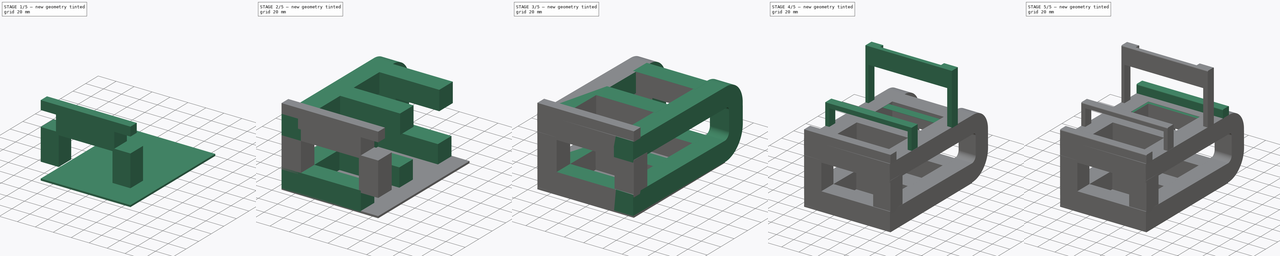
[diagram: build sequence overview — one tinted view per stage of 5, left to right]
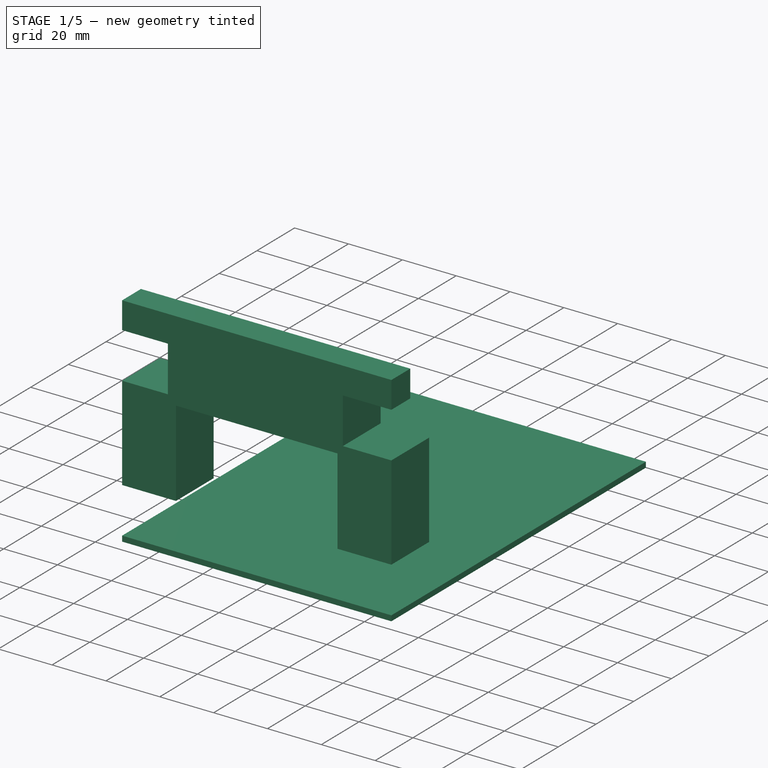
[diagram: stage 1 of 5 — iso view after this stage's code; geometry added in this stage tinted green]
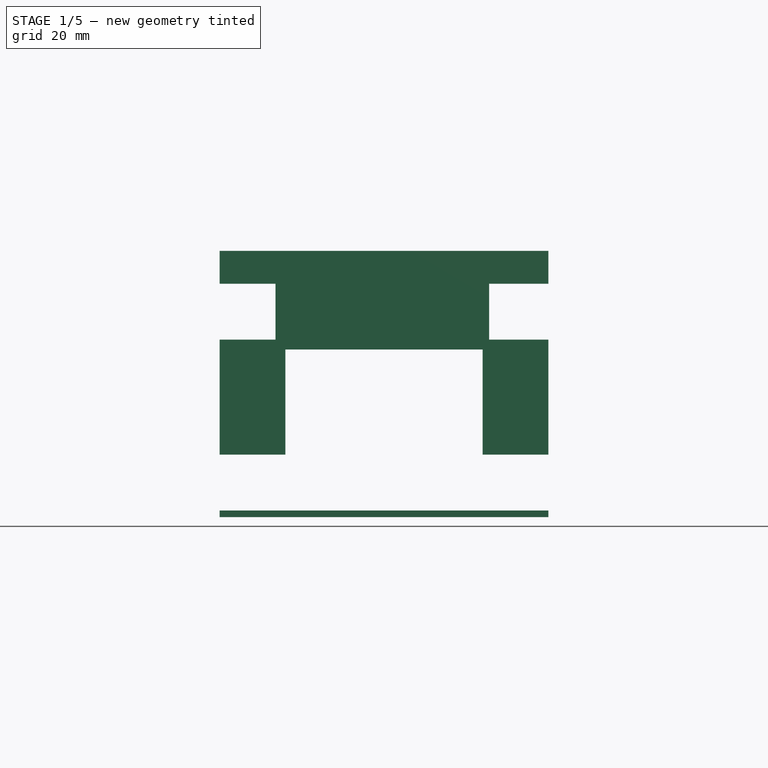
[diagram: stage 1 of 5 — front view after this stage's code; geometry added in this stage tinted green]
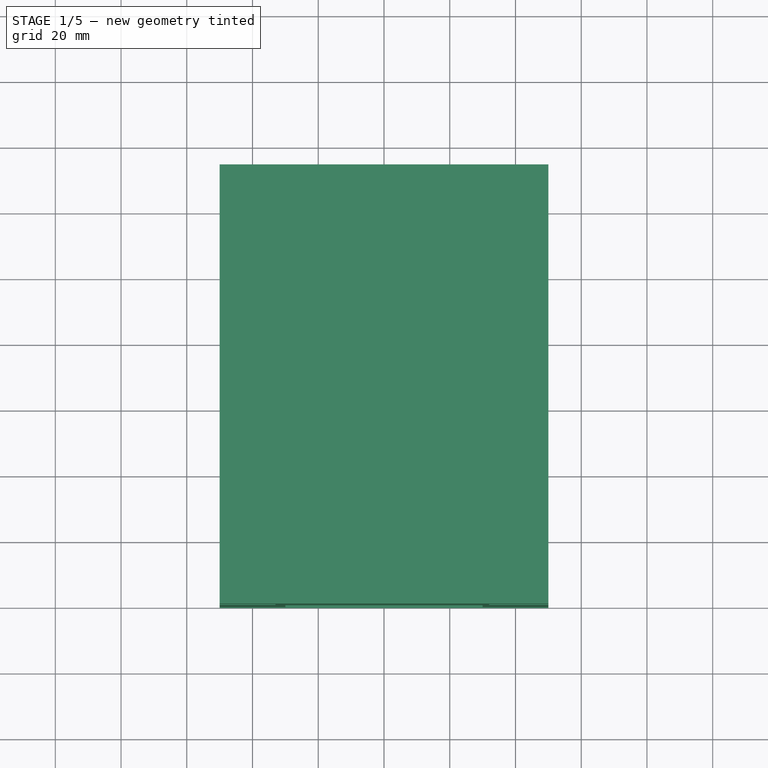
[diagram: stage 1 of 5 — top view after this stage's code; geometry added in this stage tinted green]
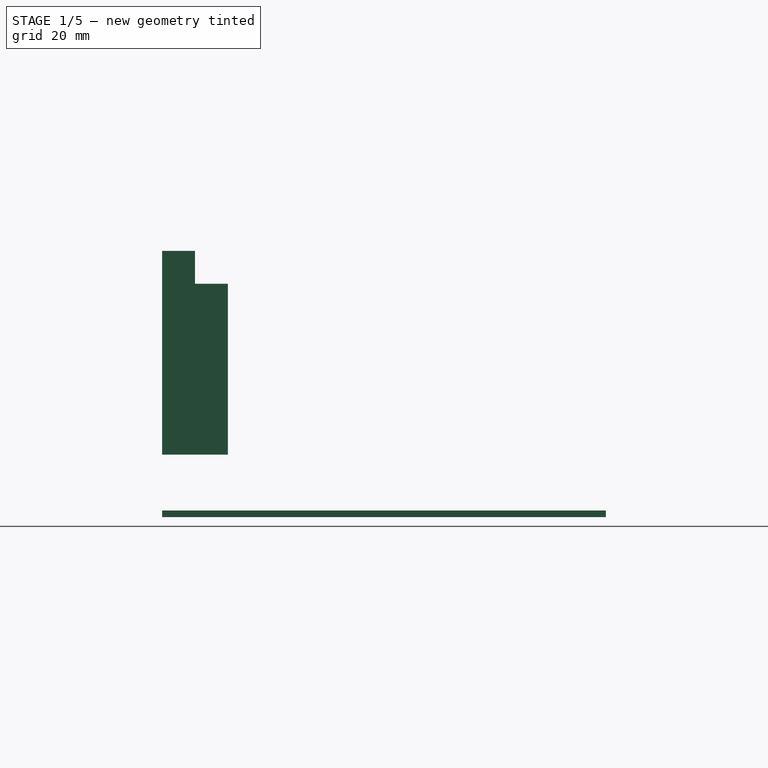
[diagram: stage 1 of 5 — right view after this stage's code; geometry added in this stage tinted green]
FCSTD DOCUMENT  (FreeCAD 0.16R6704 (Git))
Label: OBD 1. proiektua (MObila eusteko)
License: All rights reserved
LicenseURL: http://en.wikipedia.org/wiki/All_rights_reserved
objects: Sketcher::SketchObject×8, Part::Box×8, Part::MultiFuse×4, PartDesign::Pocket×4, Part::FeaturePython×3, Part::Fuse×3, Part::Fillet×2, Part::Sweep×1, Part::Mirroring×1
note: 38 computed .brp shape members not serialized (recipe doc carries the construction recipe); baked Part::Feature solids carry a one-line shape summary decoded from their .brp

FEATURE [Part::Box] Box001  label="Goiko 1. lotura"
  Height = 20
  Length = 65
  Placement = pos=(7,0,40) rot=(0,0,1;0rad)
  Width = 20
FEATURE [Part::Box] Box002  label="Mobila eusteko oin txikia"
  Height = 10
  Length = 100
  Placement = pos=(-10,0,60) rot=(0,0,1;0rad)
  Width = 10
FEATURE [Part::Box] Box006  label="Zutoina"
  Height = 35
  Length = 20
  Placement = pos=(-10,0,8) rot=(0,0,1;0rad)
  Width = 20
FEATURE [Part::FeaturePython] Array002  label="Bigarren zutoina"  # Draft array (typed FeaturePython)
  Angle = 360
  ArrayType = 0
  Axis = (0,0,1)
  Base = -> Box006
  Center = (0,0,0)
  Fuse = false
  IntervalAxis = (0,0,0)
  IntervalX = (80,0,0)
  IntervalY = (0,1,0)
  IntervalZ = (0,0,0)
  NumberPolar = 1
  NumberX = 2
  NumberY = 1
  NumberZ = 1
FEATURE [Part::Box] Box007  label="Oinarria"
  Height = 2
  Length = 100
  Placement = pos=(-10,0,-11) rot=(0,0,1;0rad)
  Width = 135
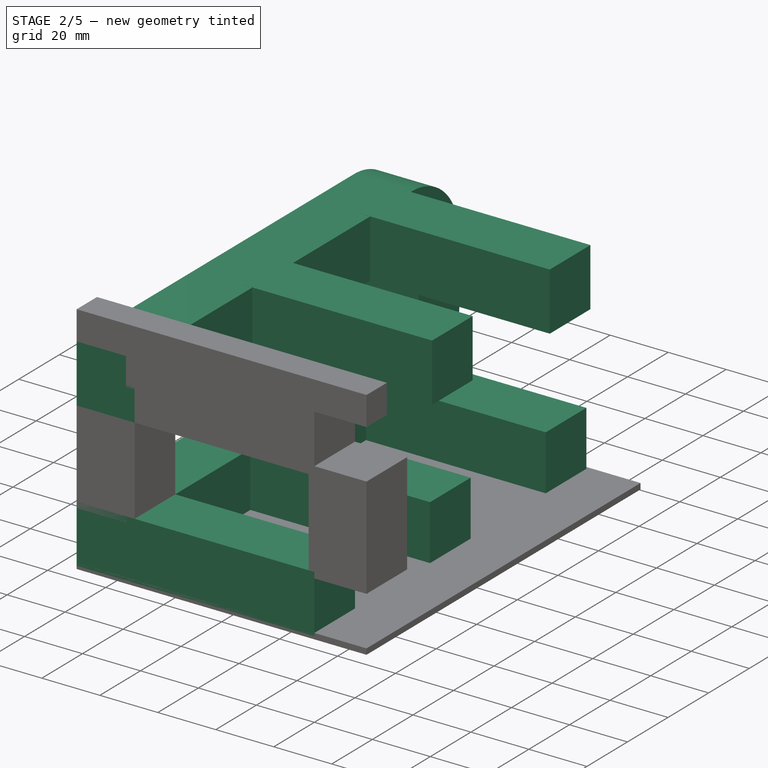
[diagram: stage 2 of 5 — iso view after this stage's code; geometry added in this stage tinted green]
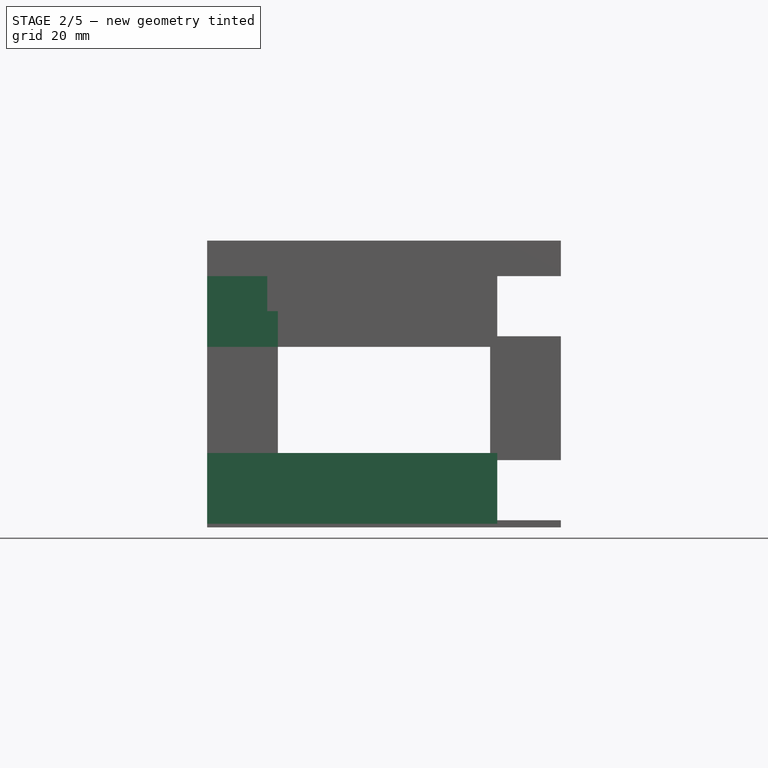
[diagram: stage 2 of 5 — front view after this stage's code; geometry added in this stage tinted green]
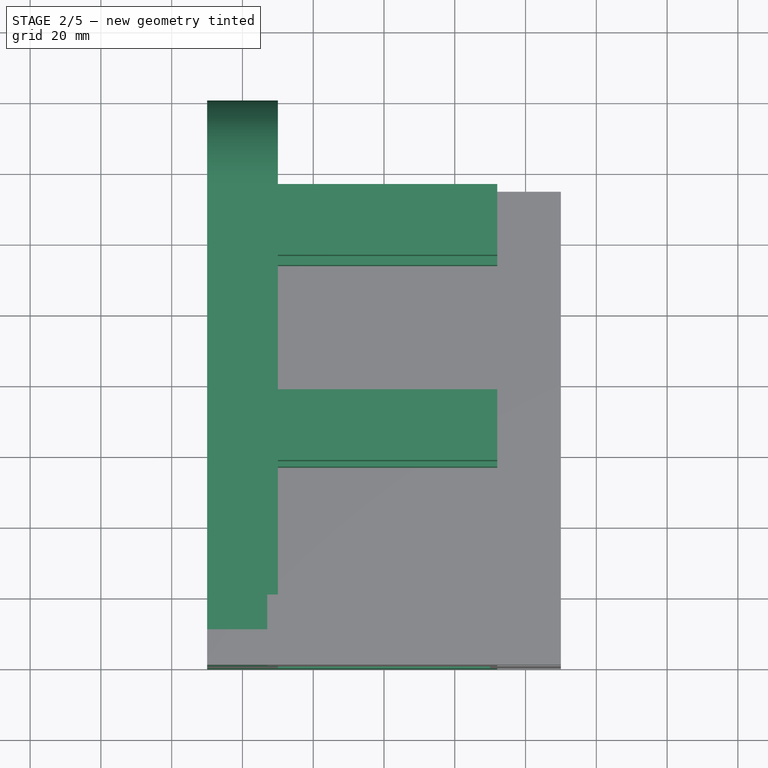
[diagram: stage 2 of 5 — top view after this stage's code; geometry added in this stage tinted green]
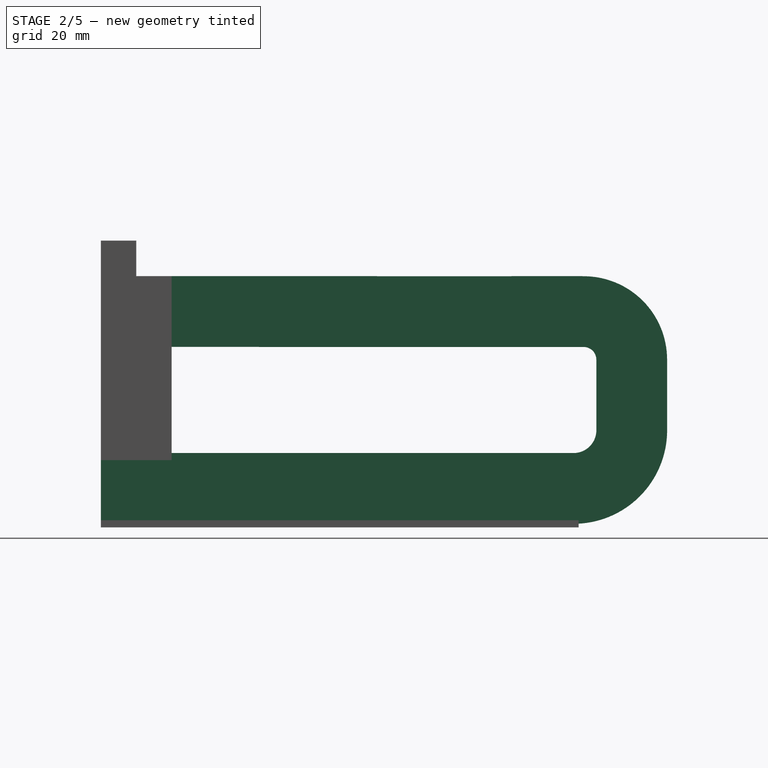
[diagram: stage 2 of 5 — right view after this stage's code; geometry added in this stage tinted green]
FEATURE [Sketcher::SketchObject] Sketch
  Placement = pos=(0,0,0) rot=(1,0,0;1.5708rad)
  sketch-geometry (4):
    g0: LineSegment StartX=-9.99956 StartY=-10.0007 StartZ=0 EndX=10.0001 EndY=-10.0007 EndZ=0
    g1: LineSegment StartX=10.0001 StartY=-10.0007 StartZ=0 EndX=10.0001 EndY=9.9998 EndZ=0
    g2: LineSegment StartX=10.0001 StartY=9.9998 StartZ=0 EndX=-9.99956 EndY=9.9998 EndZ=0
    g3: LineSegment StartX=-9.99956 StartY=9.9998 StartZ=0 EndX=-9.99956 EndY=-10.0007 EndZ=0
  constraints (8):
    c: Coincident(g0,g1)
    c: Coincident(g1,g2)
    c: Coincident(g2,g3)
    c: Coincident(g3,g0)
    c: Horizontal(g0)
    c: Horizontal(g2)
    c: Vertical(g1)
    c: Vertical(g3)
FEATURE [Sketcher::SketchObject] Sketch001
  Placement = pos=(0,0,0) rot=(0.57735,0.57735,0.57735;2.0944rad)
  sketch-geometry (5):
    g0: LineSegment StartX=0 StartY=0 StartZ=0 EndX=133.575 EndY=-0.0115726 EndZ=0
    g1: LineSegment StartX=150.018 StartY=16.4399 StartZ=0 EndX=150.006 EndY=36.4081 EndZ=0
    g2: ArcOfCircle CenterX=133.577 CenterY=16.4298 CenterZ=0 NormalX=0 NormalY=0 NormalZ=1 Radius=16.4413 StartAngle=4.7123 EndAngle=6.2838
    g3: LineSegment StartX=136.456 StartY=49.9529 StartZ=0 EndX=0 EndY=49.9834 EndZ=0
    g4: ArcOfCircle CenterX=136.453 CenterY=36.3998 CenterZ=0 NormalX=0 NormalY=0 NormalZ=1 Radius=13.5531 StartAngle=0.000615353 EndAngle=1.57057
  constraints (5):
    c: Tangent(g1,g2) = -1.5708
    c: Tangent(g0,g2) = -1.5708
    c: PointOnObject(g3,g-2)
    c: Tangent(g1,g4) = -1.5708
    c: Tangent(g3,g4) = -1.5708
FEATURE [Part::Sweep] Sweep  label="Oinarrizko estruktura"
  Frenet = false
  Sections = -> [Sketch]
  Solid = true
  Spine = -> Sketch001 [Edge1,Edge2,Edge3,Edge4,Edge5]
  Transition = 1
FEATURE [Part::Box] Box  label="1, Lotura"
  Height = 20
  Length = 65
  Placement = pos=(7,0,-10) rot=(0,0,1;0rad)
  Width = 20
FEATURE [Part::FeaturePython] Array  label="Beherako loturak"  # Draft array (typed FeaturePython)
  Angle = 360
  ArrayType = 0
  Axis = (0,0,1)
  Base = -> Box
  Center = (0,0,0)
  Fuse = false
  IntervalAxis = (0,0,0)
  IntervalX = (1,0,0)
  IntervalY = (0,57,0)
  IntervalZ = (0,0,0)
  NumberPolar = 1
  NumberX = 1
  NumberY = 3
  NumberZ = 1
FEATURE [Part::Fuse] Fusion  label="Estruktura + loturak"
  Base = -> Sweep
  Tool = -> Array
FEATURE [Part::FeaturePython] Array001  label="Goiko oloturak"  # Draft array (typed FeaturePython)
  Angle = 360
  ArrayType = 0
  Axis = (0,0,1)
  Base = -> Box001
  Center = (0,0,0)
  Fuse = false
  IntervalAxis = (0,0,0)
  IntervalX = (1,0,0)
  IntervalY = (0,58,0)
  IntervalZ = (0,0,0)
  NumberPolar = 1
  NumberX = 1
  NumberY = 3
  NumberZ = 1
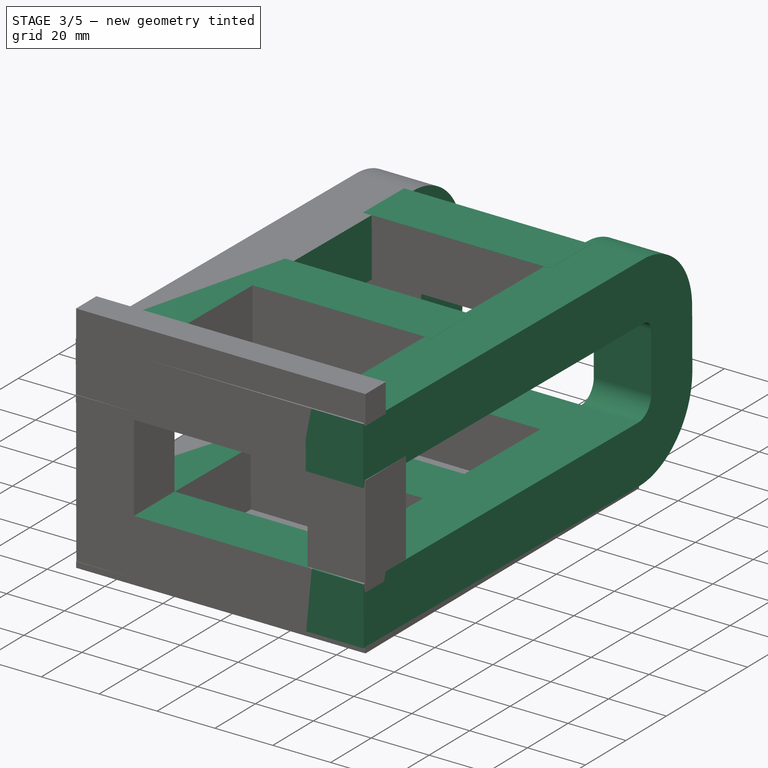
[diagram: stage 3 of 5 — iso view after this stage's code; geometry added in this stage tinted green]
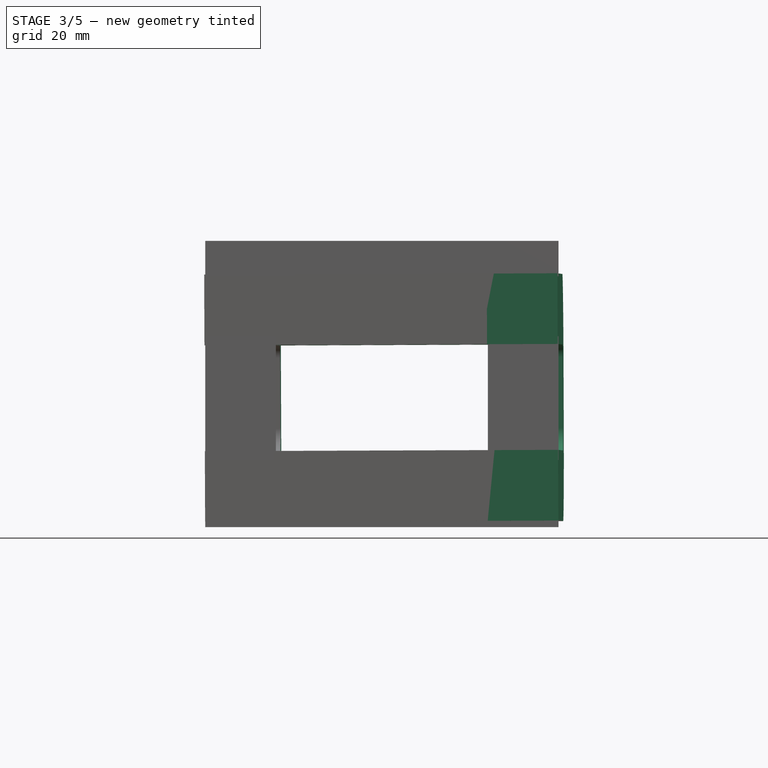
[diagram: stage 3 of 5 — front view after this stage's code; geometry added in this stage tinted green]
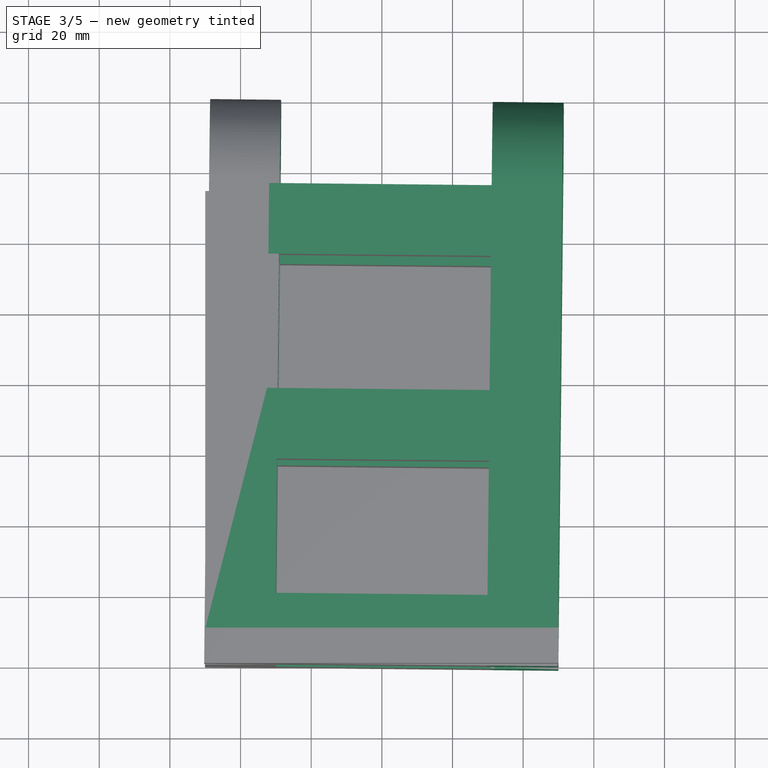
[diagram: stage 3 of 5 — top view after this stage's code; geometry added in this stage tinted green]
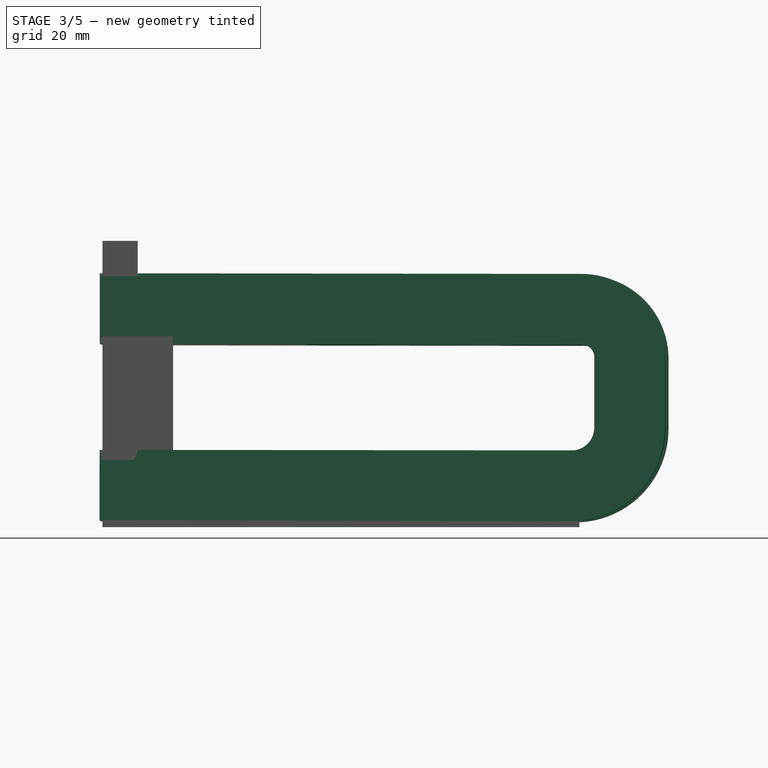
[diagram: stage 3 of 5 — right view after this stage's code; geometry added in this stage tinted green]
FEATURE [Part::Mirroring] Part__Mirroring  label="Oinarrizko estruktura, beste aldea"
  Base = (0,0,0)
  Normal = (1,0,0)
  Placement = pos=(80,0,0) rot=(0,0,1;0rad)
  Source = -> Sweep
FEATURE [Part::Fuse] Fusion001  label="oinarrizko estrukturen lotura"
  Base = -> Part__Mirroring
  Tool = -> Fusion
FEATURE [Part::Fuse] Fusion002  label="Estruktura"
  Base = -> Fusion001
  Placement = pos=(-0.0674155,0.0881086,0.519024) rot=(-0.107493,-0.347421,-0.931528;0.010904rad)
  Tool = -> Array001
FEATURE [Part::MultiFuse] Fusion003  label="Estruktura oin txikiarekin"
  Shapes = -> [Box002,Fusion002]
FEATURE [Part::MultiFuse] Fusion004
  Shapes = -> [Array002,Fusion003]
FEATURE [Part::MultiFuse] Fusion005
  Shapes = -> [Box007,Fusion004]
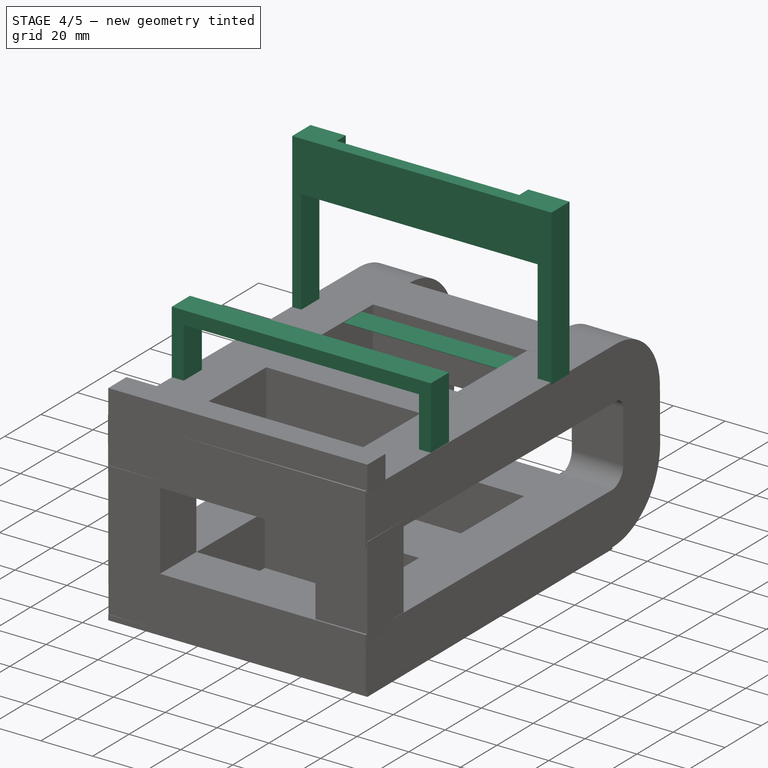
[diagram: stage 4 of 5 — iso view after this stage's code; geometry added in this stage tinted green]
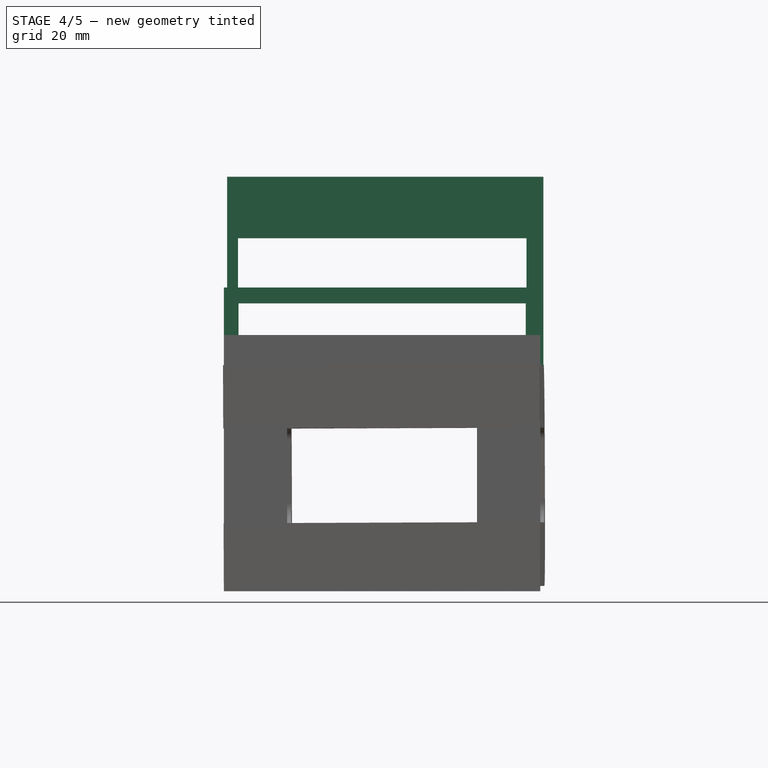
[diagram: stage 4 of 5 — front view after this stage's code; geometry added in this stage tinted green]
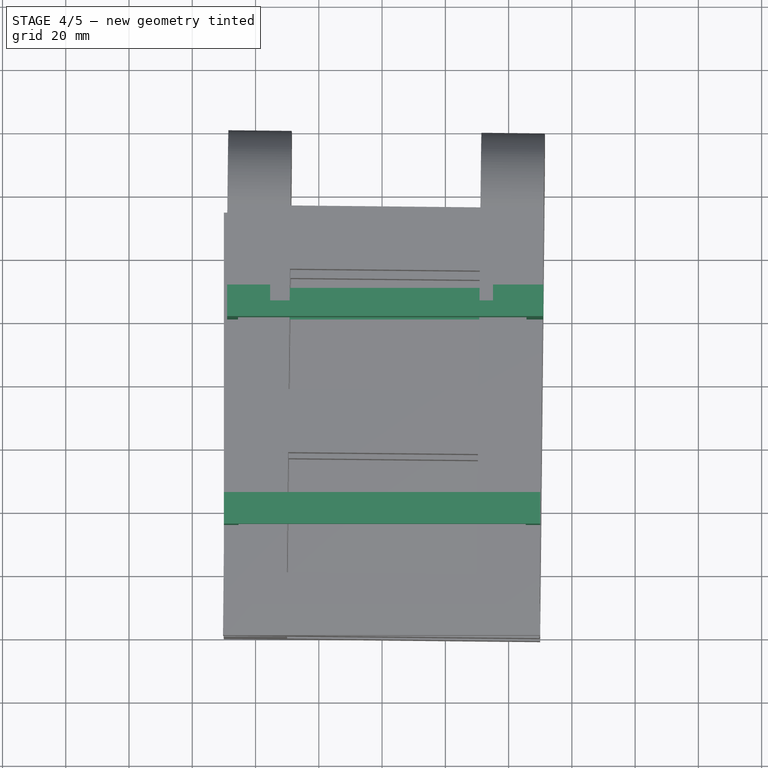
[diagram: stage 4 of 5 — top view after this stage's code; geometry added in this stage tinted green]
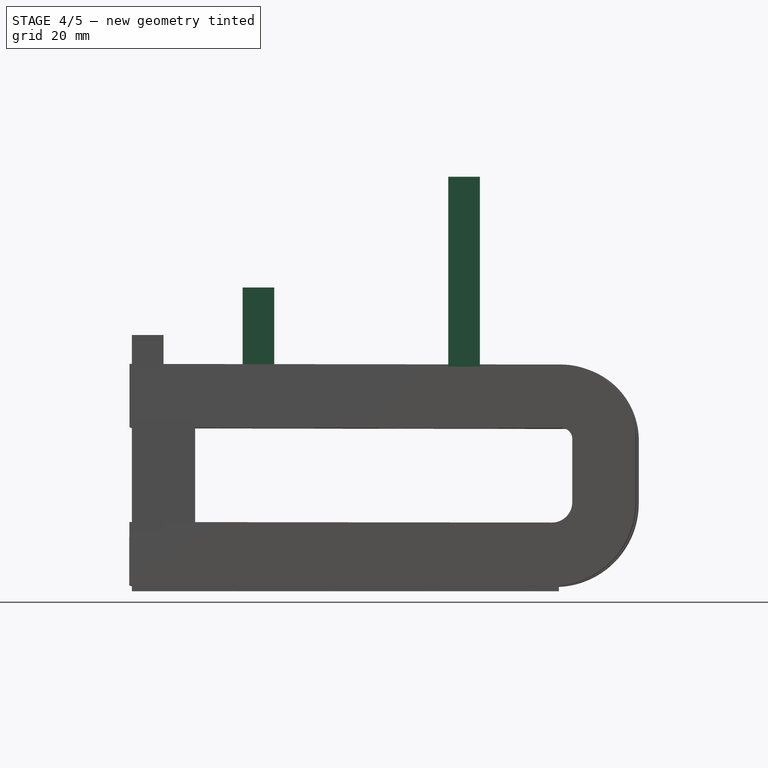
[diagram: stage 4 of 5 — right view after this stage's code; geometry added in this stage tinted green]
FEATURE [Part::Box] Box003  label="Horizontalki eusteko oin handia"
  Height = 25
  Length = 100
  Placement = pos=(-10,35,60) rot=(0,0,1;0rad)
  Width = 10
FEATURE [Part::Box] Box005  label="Bertikalki eusteko oin handia"
  Height = 60
  Length = 100
  Placement = pos=(-9,100,60) rot=(0,0,1;0rad)
  Width = 10
FEATURE [Sketcher::SketchObject] Sketch002
  Placement = pos=(-10,35,60) rot=(1,0,0;1.5708rad)
  Support = -> Box003 [Face3]
FEATURE [Sketcher::SketchObject] Sketch003
  Placement = pos=(-10,35,60) rot=(1,0,0;1.5708rad)
  Support = -> Box003 [Face3]
  sketch-geometry (4):
    g0: LineSegment StartX=4.59968 StartY=-0.198788 StartZ=0 EndX=95.406 EndY=-0.198788 EndZ=0
    g1: LineSegment StartX=95.406 StartY=-0.198788 StartZ=0 EndX=95.406 EndY=19.9706 EndZ=0
    g2: LineSegment StartX=95.406 StartY=19.9706 StartZ=0 EndX=4.59968 EndY=19.9706 EndZ=0
    g3: LineSegment StartX=4.59968 StartY=19.9706 StartZ=0 EndX=4.59968 EndY=-0.198788 EndZ=0
  constraints (8):
    c: Coincident(g0,g1)
    c: Coincident(g1,g2)
    c: Coincident(g2,g3)
    c: Coincident(g3,g0)
    c: Horizontal(g0)
    c: Horizontal(g2)
    c: Vertical(g1)
    c: Vertical(g3)
FEATURE [PartDesign::Pocket] Pocket
  Length = 105
  Placement = pos=(-10,35,60) rot=(0,0,1;0rad)
  Sketch = -> Sketch003
  Type = 1
FEATURE [Sketcher::SketchObject] Sketch004
  Placement = pos=(-9,100,60) rot=(1,0,0;1.5708rad)
  Support = -> Box005 [Face3]
  sketch-geometry (4):
    g0: LineSegment StartX=3.45614 StartY=0.196758 StartZ=0 EndX=94.6742 EndY=0.196758 EndZ=0
    g1: LineSegment StartX=94.6742 StartY=0.196758 StartZ=0 EndX=94.6742 EndY=40.5584 EndZ=0
    g2: LineSegment StartX=94.6742 StartY=40.5584 StartZ=0 EndX=3.45614 EndY=40.5584 EndZ=0
    g3: LineSegment StartX=3.45614 StartY=40.5584 StartZ=0 EndX=3.45614 EndY=0.196758 EndZ=0
  constraints (8):
    c: Coincident(g0,g1)
    c: Coincident(g1,g2)
    c: Coincident(g2,g3)
    c: Coincident(g3,g0)
    c: Horizontal(g0)
    c: Horizontal(g2)
    c: Vertical(g1)
    c: Vertical(g3)
FEATURE [PartDesign::Pocket] Pocket001
  Length = 5
  Placement = pos=(-9,100,60) rot=(0,0,1;0rad)
  Sketch = -> Sketch004
  Type = 1
FEATURE [Sketcher::SketchObject] Sketch005
  Placement = pos=(-9,110,60) rot=(0,0.707107,0.707107;3.14159rad)
  Support = -> Pocket001 [Face4]
  sketch-geometry (4):
    g0: LineSegment StartX=-84.069 StartY=38.3452 StartZ=0 EndX=-13.6133 EndY=38.3452 EndZ=0
    g1: LineSegment StartX=-13.6133 StartY=38.3452 StartZ=0 EndX=-13.6133 EndY=61.0136 EndZ=0
    g2: LineSegment StartX=-13.6133 StartY=61.0136 StartZ=0 EndX=-84.069 EndY=61.0136 EndZ=0
    g3: LineSegment StartX=-84.069 StartY=61.0136 StartZ=0 EndX=-84.069 EndY=38.3452 EndZ=0
  constraints (8):
    c: Coincident(g0,g1)
    c: Coincident(g1,g2)
    c: Coincident(g2,g3)
    c: Coincident(g3,g0)
    c: Horizontal(g0)
    c: Horizontal(g2)
    c: Vertical(g1)
    c: Vertical(g3)
FEATURE [PartDesign::Pocket] Pocket002
  Length = 5
  Placement = pos=(-9,100,60) rot=(0,0,1;0rad)
  Sketch = -> Sketch005
  Type = 0
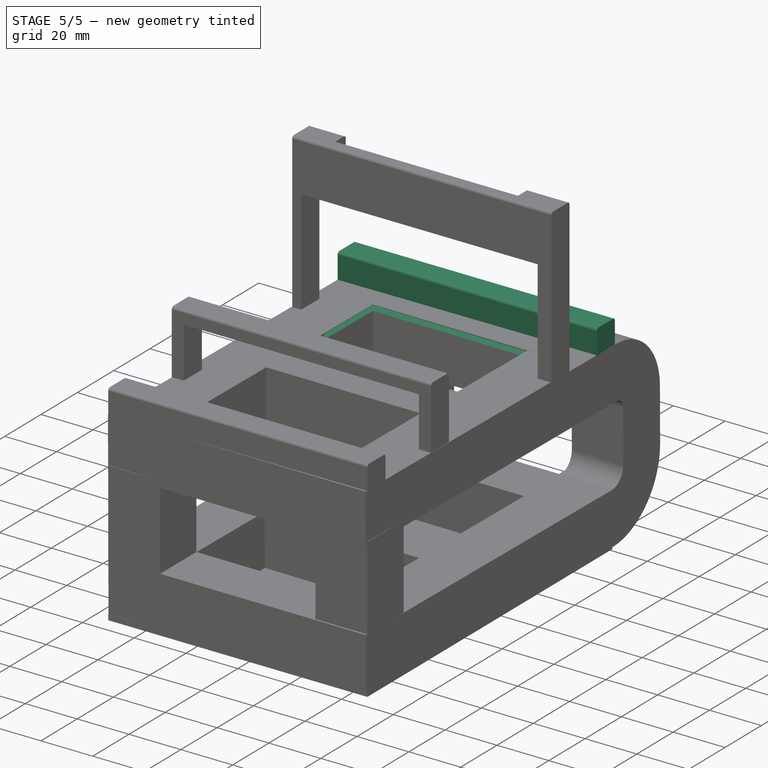
[diagram: stage 5 of 5 — iso view after this stage's code; geometry added in this stage tinted green]
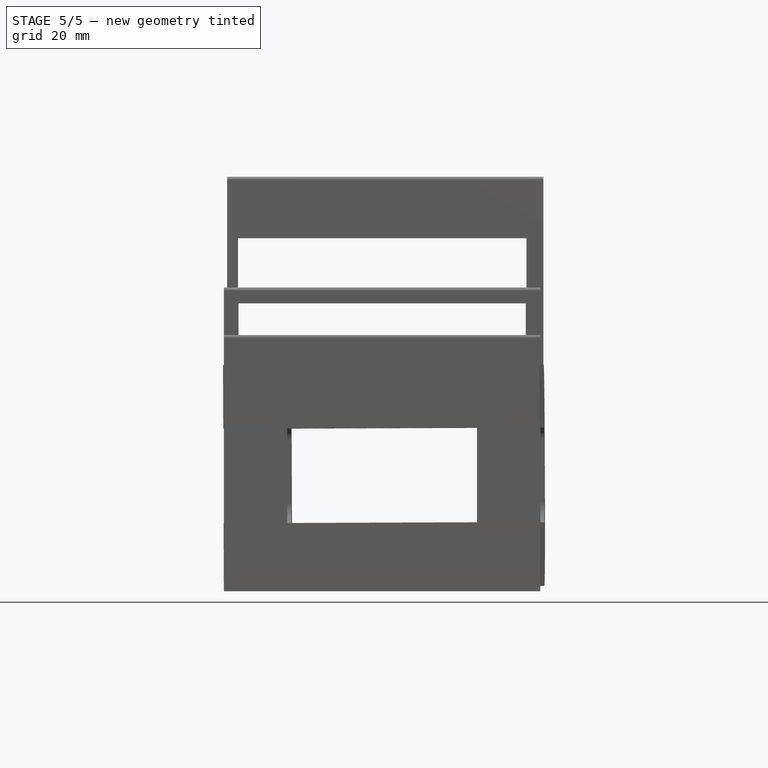
[diagram: stage 5 of 5 — front view after this stage's code; geometry added in this stage tinted green]
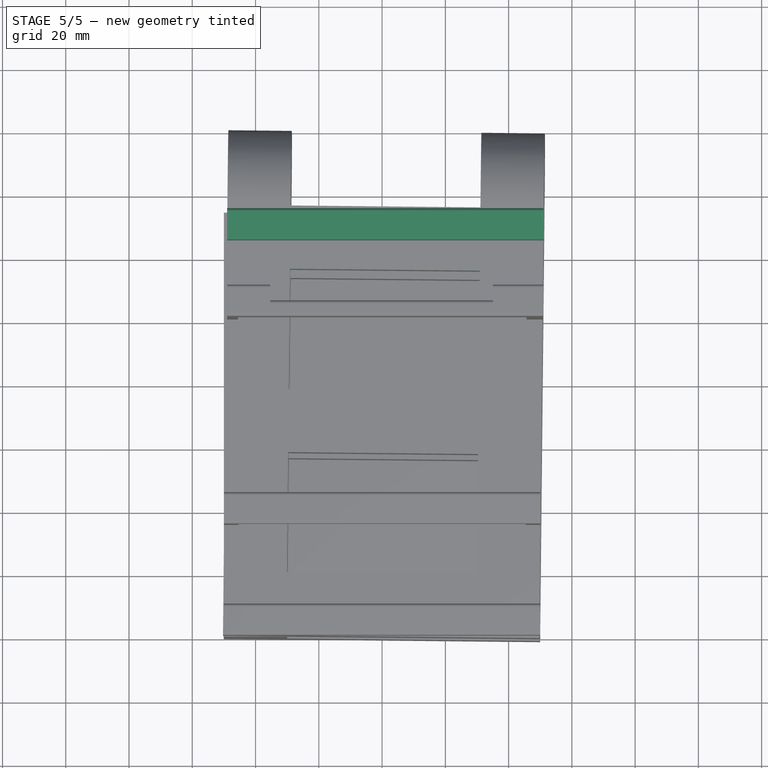
[diagram: stage 5 of 5 — top view after this stage's code; geometry added in this stage tinted green]
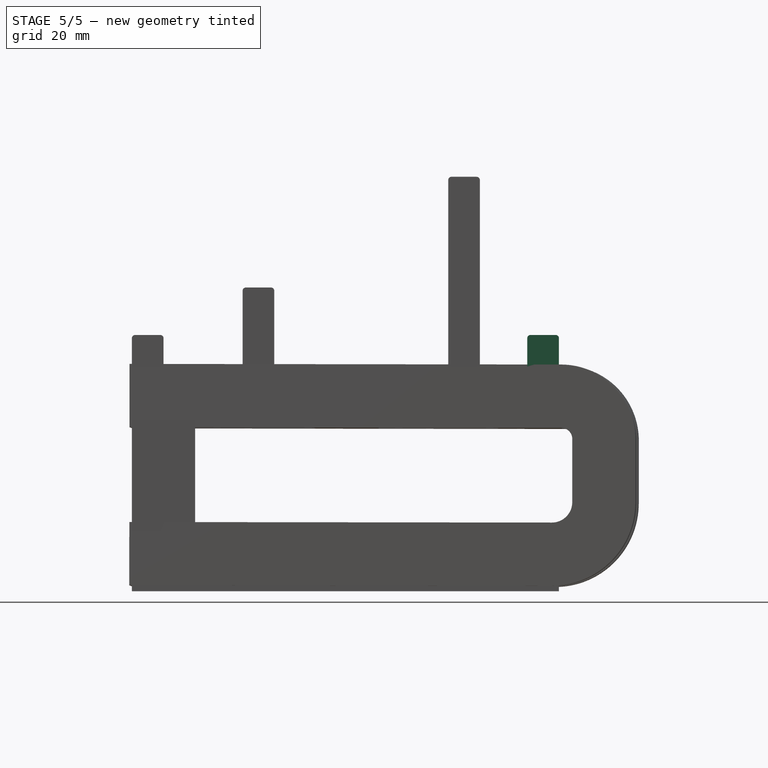
[diagram: stage 5 of 5 — right view after this stage's code; geometry added in this stage tinted green]
FEATURE [Part::Box] Box004  label="Bertikalki eusteko oin txikia"
  Height = 10
  Length = 100
  Placement = pos=(-9,125,60) rot=(0,0,1;0rad)
  Width = 10
FEATURE [Part::MultiFuse] Fusion006
  Shapes = -> [Fusion005,Pocket,Pocket002,Box004]
FEATURE [Part::Fillet] Fillet008
  Base = -> Fusion006
  Edges = 4 edges r=1: [Edge2,Edge4,Edge182,Edge190]
FEATURE [Part::Fillet] Fillet009
  Base = -> Fillet008
  Edges = 6 edges r=1: [Edge168,Edge219,Edge229,Edge370,Edge374,Edge435]
FEATURE [Sketcher::SketchObject] Sketch006
  Placement = pos=(0,0,60.1968) rot=(0,0,1;0rad)
  Support = -> Fillet009 [Face108]
  sketch-geometry (4):
    g0: LineSegment StartX=4.45686 StartY=138.251 StartZ=0 EndX=87.7356 EndY=138.251 EndZ=0
    g1: LineSegment StartX=87.7356 StartY=138.251 StartZ=0 EndX=87.7356 EndY=89.6436 EndZ=0
    g2: LineSegment StartX=87.7356 StartY=89.6436 StartZ=0 EndX=4.45686 EndY=89.6436 EndZ=0
    g3: LineSegment StartX=4.45686 StartY=89.6436 StartZ=0 EndX=4.45686 EndY=138.251 EndZ=0
  constraints (8):
    c: Coincident(g0,g1)
    c: Coincident(g1,g2)
    c: Coincident(g2,g3)
    c: Coincident(g3,g0)
    c: Horizontal(g0)
    c: Horizontal(g2)
    c: Vertical(g1)
    c: Vertical(g3)
FEATURE [PartDesign::Pocket] Pocket003
  Length = 2
  Sketch = -> Sketch006
  Type = 0
FEATURE [Sketcher::SketchObject] Sketch007
  Placement = pos=(-8,-5,-8) rot=(1,0,0;1.5708rad)
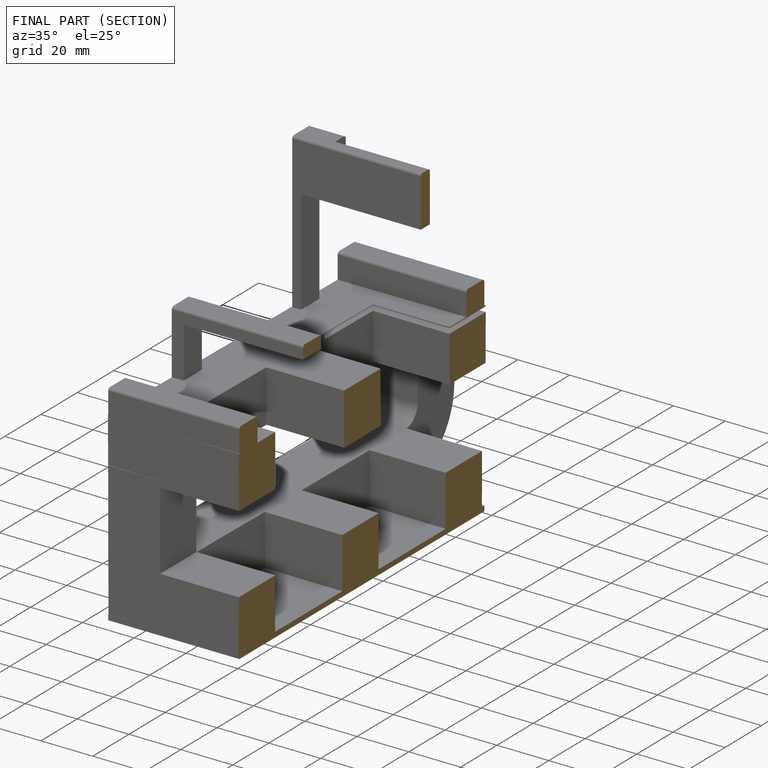
[diagram: finished part — half-section view (interior)]
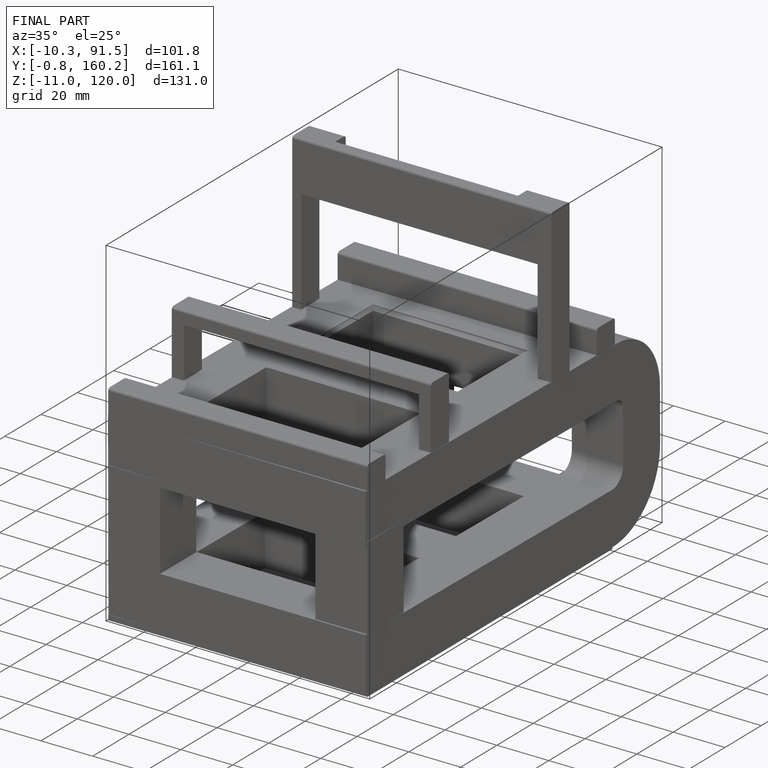
[diagram: finished part — iso view with bounding-box wireframe]
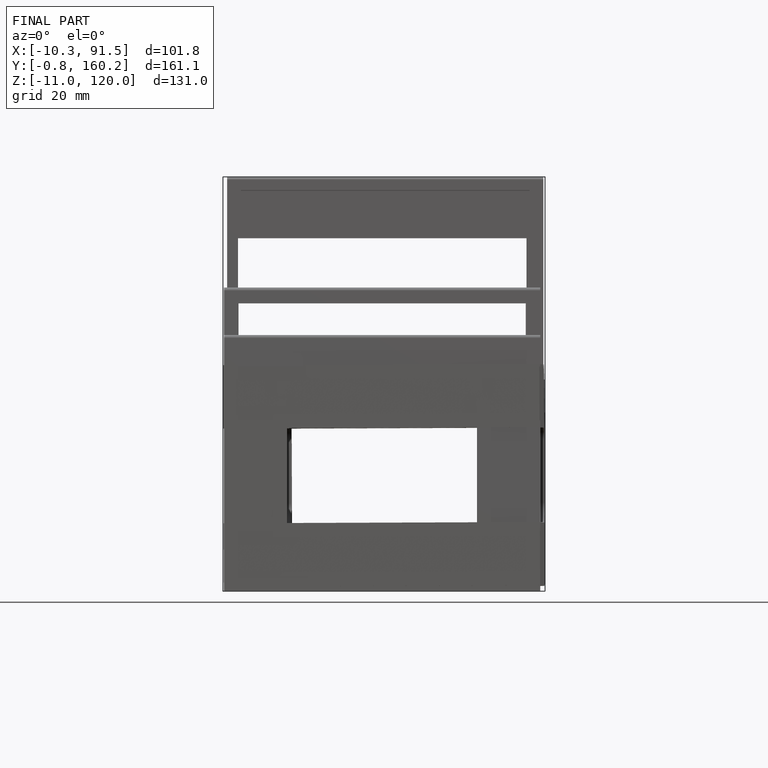
[diagram: finished part — front view with bounding-box wireframe]
